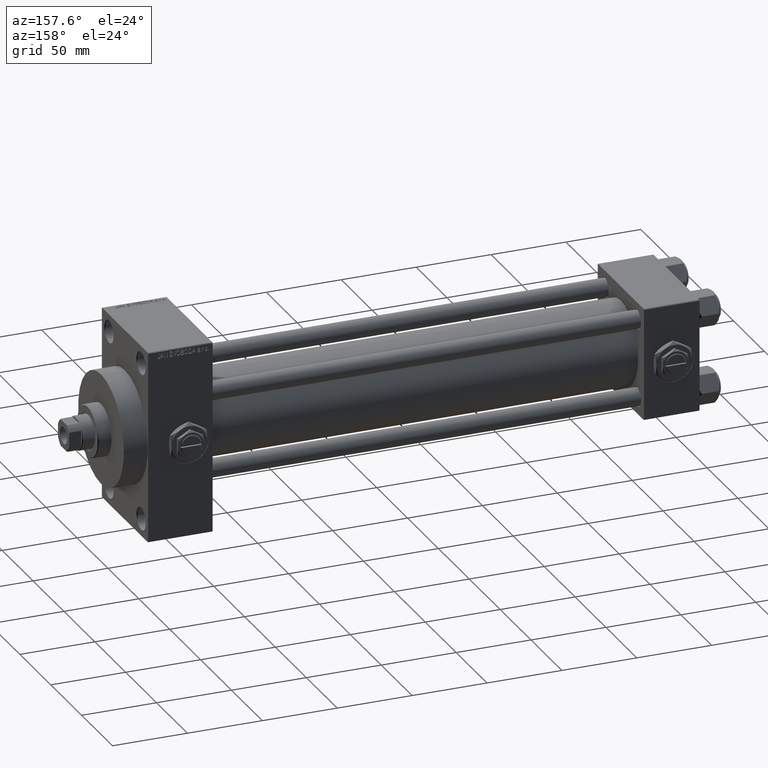
[diagram: clean part render]
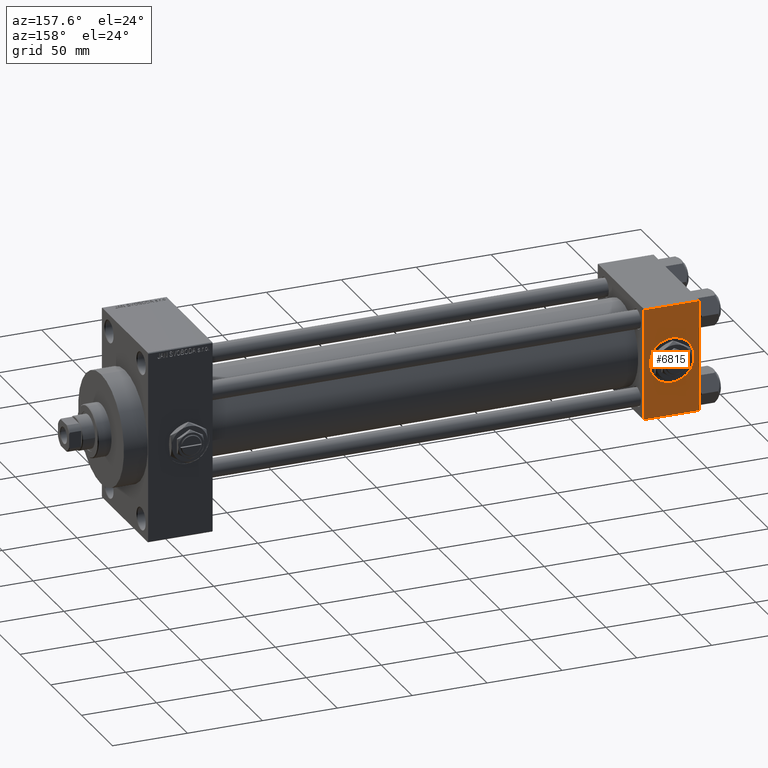
[diagram: same view with one face highlighted and labeled with its STEP entity id]
A machine part, auxiliary view. The second image highlights one B-rep face of the part: STEP entity #6815.
In plain terms, the highlighted planar face has unit normal (0, 1, 0).
Its self-contained STEP definition (entity closure, byte-faithful):
#952 = VERTEX_POINT ( 'NONE', #19432 ) ;
#2107 = VECTOR ( 'NONE', #44662, 1000.000000000000000 ) ;
#2416 = ORIENTED_EDGE ( 'NONE', *, *, #33409, .T. ) ;
#3298 = CARTESIAN_POINT ( 'NONE',  ( 37.00000000000000000, 37.49999999999999289, 37.00000000000000000 ) ) ;
#3598 = CARTESIAN_POINT ( 'NONE',  ( 37.00000000000000000, 37.49999999999999289, 37.50000000000000000 ) ) ;
#3644 = FACE_BOUND ( 'NONE', #46342, .T. ) ;
#3881 = PLANE ( 'NONE',  #25787 ) ;
#4693 = ORIENTED_EDGE ( 'NONE', *, *, #32081, .T. ) ;
#6078 = LINE ( 'NONE', #6321, #29177 ) ;
#6321 = CARTESIAN_POINT ( 'NONE',  ( 37.00000000000000000, 37.49999999999999289, -36.99999999999998579 ) ) ;
#6437 = CARTESIAN_POINT ( 'NONE',  ( 37.00000000000000000, 37.49999999999999289, 37.00000000000000000 ) ) ;
#6815 = ADVANCED_FACE ( 'NONE', ( #3644, #8101 ), #3881, .T. ) ;
#7734 = CARTESIAN_POINT ( 'NONE',  ( 18.50000000000000355, 37.49999999999999289, -15.00000000000000178 ) ) ;
#8101 = FACE_OUTER_BOUND ( 'NONE', #30040, .T. ) ;
#11340 = CIRCLE ( 'NONE', #22466, 15.00000000000000178 ) ;
#13211 = ORIENTED_EDGE ( 'NONE', *, *, #46589, .F. ) ;
#14597 = DIRECTION ( 'NONE',  ( 0.000000000000000000, 0.000000000000000000, 1.000000000000000000 ) ) ;
#16077 = AXIS2_PLACEMENT_3D ( 'NONE', #27874, #24130, #14597 ) ;
#18194 = VERTEX_POINT ( 'NONE', #49136 ) ;
#18216 = VECTOR ( 'NONE', #21385, 1000.000000000000000 ) ;
#18637 = EDGE_CURVE ( 'NONE', #18194, #19258, #11340, .T. ) ;
#19076 = CARTESIAN_POINT ( 'NONE',  ( 37.00000000000000000, 37.49999999999999289, 37.50000000000000000 ) ) ;
#19258 = VERTEX_POINT ( 'NONE', #7734 ) ;
#19432 = CARTESIAN_POINT ( 'NONE',  ( 0.000000000000000000, 37.49999999999999289, 37.00000000000000000 ) ) ;
#19461 = VERTEX_POINT ( 'NONE', #45284 ) ;
#21385 = DIRECTION ( 'NONE',  ( 0.000000000000000000, 0.000000000000000000, -1.000000000000000000 ) ) ;
#22466 = AXIS2_PLACEMENT_3D ( 'NONE', #31086, #44025, #32552 ) ;
#23022 = VERTEX_POINT ( 'NONE', #47225 ) ;
#24130 = DIRECTION ( 'NONE',  ( 0.000000000000000000, 1.000000000000000000, 0.000000000000000000 ) ) ;
#25485 = DIRECTION ( 'NONE',  ( -1.000000000000000000, 0.000000000000000000, 0.000000000000000000 ) ) ;
#25607 = LINE ( 'NONE', #40305, #18216 ) ;
#25787 = AXIS2_PLACEMENT_3D ( 'NONE', #19076, #42460, #30528 ) ;
#27874 = CARTESIAN_POINT ( 'NONE',  ( 18.50000000000000000, 37.49999999999999289, 0.000000000000000000 ) ) ;
#29177 = VECTOR ( 'NONE', #25485, 1000.000000000000000 ) ;
#29648 = VERTEX_POINT ( 'NONE', #6437 ) ;
#30040 = EDGE_LOOP ( 'NONE', ( #38772, #2416, #42727, #4693 ) ) ;
#30528 = DIRECTION ( 'NONE',  ( 0.000000000000000000, -0.000000000000000000, 1.000000000000000000 ) ) ;
#31086 = CARTESIAN_POINT ( 'NONE',  ( 18.50000000000000000, 37.49999999999999289, 0.000000000000000000 ) ) ;
#32081 = EDGE_CURVE ( 'NONE', #952, #29648, #41168, .T. ) ;
#32552 = DIRECTION ( 'NONE',  ( 0.000000000000000000, 0.000000000000000000, 1.000000000000000000 ) ) ;
#33409 = EDGE_CURVE ( 'NONE', #19461, #23022, #6078, .T. ) ;
#34447 = DIRECTION ( 'NONE',  ( 0.000000000000000000, 0.000000000000000000, -1.000000000000000000 ) ) ;
#34695 = EDGE_CURVE ( 'NONE', #29648, #19461, #45209, .T. ) ;
#38336 = EDGE_CURVE ( 'NONE', #952, #23022, #25607, .T. ) ;
#38772 = ORIENTED_EDGE ( 'NONE', *, *, #34695, .T. ) ;
#39927 = CIRCLE ( 'NONE', #16077, 15.00000000000000178 ) ;
#40305 = CARTESIAN_POINT ( 'NONE',  ( 0.000000000000000000, 37.49999999999999289, 37.50000000000000000 ) ) ;
#41168 = LINE ( 'NONE', #3298, #2107 ) ;
#41853 = ORIENTED_EDGE ( 'NONE', *, *, #18637, .F. ) ;
#42460 = DIRECTION ( 'NONE',  ( -0.000000000000000000, 1.000000000000000000, 0.000000000000000000 ) ) ;
#42727 = ORIENTED_EDGE ( 'NONE', *, *, #38336, .F. ) ;
#42778 = VECTOR ( 'NONE', #34447, 1000.000000000000000 ) ;
#44025 = DIRECTION ( 'NONE',  ( 0.000000000000000000, 1.000000000000000000, 0.000000000000000000 ) ) ;
#44662 = DIRECTION ( 'NONE',  ( 1.000000000000000000, 0.000000000000000000, 0.000000000000000000 ) ) ;
#45209 = LINE ( 'NONE', #3598, #42778 ) ;
#45284 = CARTESIAN_POINT ( 'NONE',  ( 37.00000000000000000, 37.49999999999999289, -36.99999999999998579 ) ) ;
#46342 = EDGE_LOOP ( 'NONE', ( #41853, #13211 ) ) ;
#46589 = EDGE_CURVE ( 'NONE', #19258, #18194, #39927, .T. ) ;
#47225 = CARTESIAN_POINT ( 'NONE',  ( 0.000000000000000000, 37.49999999999999289, -36.99999999999998579 ) ) ;
#49136 = CARTESIAN_POINT ( 'NONE',  ( 18.50000000000000000, 37.49999999999999289, 15.00000000000000178 ) ) ;